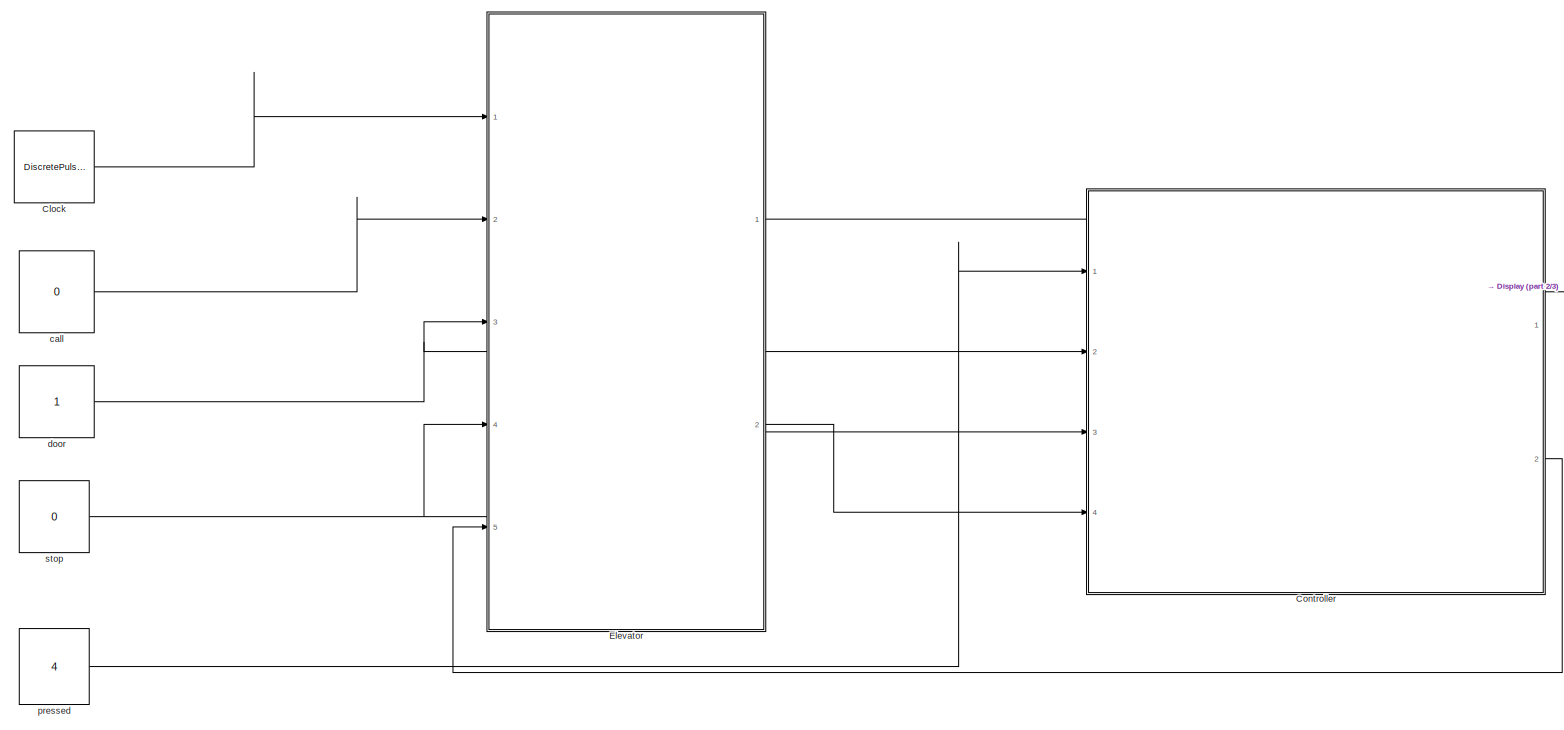
[diagram: root canvas - part 1/3, full width, top band]
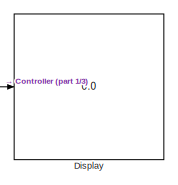
[diagram: root canvas - part 2/3, top right region]
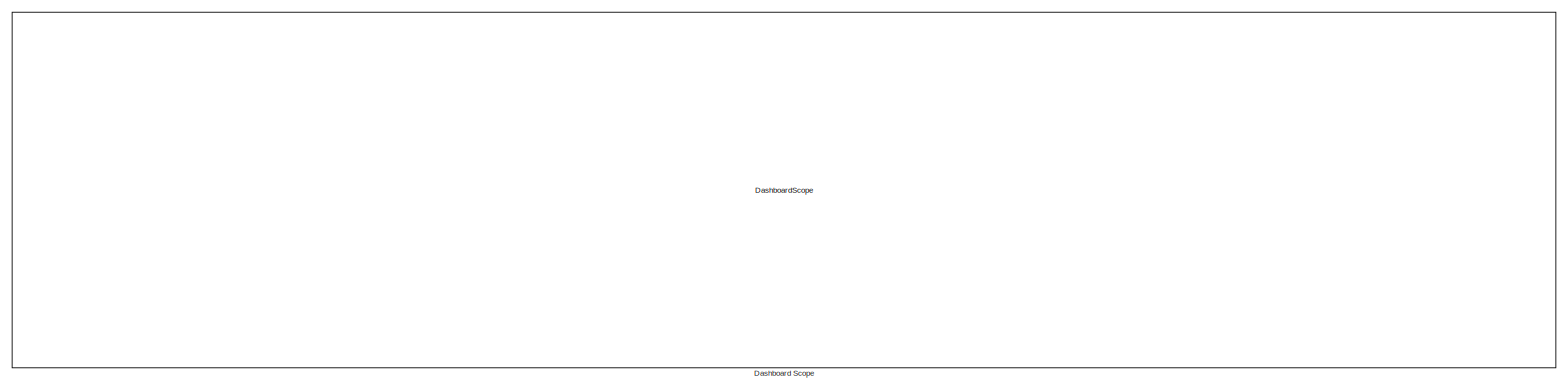
[diagram: root canvas - part 3/3, full width, bottom band]
MODEL slx_94f4ce5ff94b
KIND model
CONFIG AbsTol = auto
CONFIG EnableMultiTasking = on
CONFIG FixedStep = 0.01
CONFIG MaxStep = 0.2
CONFIG MinStep = auto
CONFIG RelTol = 1e-3
CONFIG SampleTimeConstraint = Unconstrained
CONFIG Solver = FixedStepAuto
CONFIG SolverName = FixedStepAuto
CONFIG StartTime = 0.0
CONFIG StopTime = inf
BLOCK [DiscretePulseGenerator] Clock
  Period = 1
  Ports = [0, 1]
  PulseType = Time based
  PulseWidth = 5
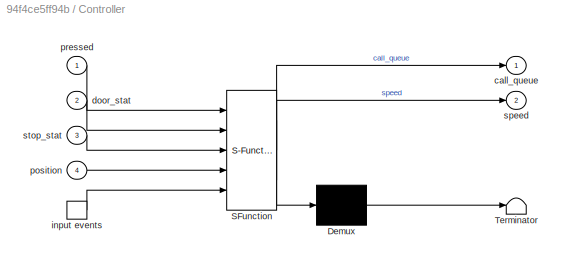
BLOCK [SubSystem] Controller
  BlockKeywords = __PRM__SERIALIZED__DATA__:Stateflow Chart,Stateflow Diagram
  ErrorFcn = Stateflow.Translate.translate
  PermitHierarchicalResolution = ExplicitOnly
  Ports = [4, 2, 0, 1]
  RequestExecContextInheritance = off
  SFBlockType = Chart
  TreatAsAtomicUnit = on
BLOCK [Demux] Controller/ Demux 
  Outputs = 1
  Ports = [1, 1]
BLOCK [S-Function] Controller/ SFunction 
  EnableBusSupport = on
  FunctionName = sf_sfun
  PortCounts = [5 3]
  Ports = [5, 3]
  SFcnIsStateOwnerBlock = off
  SFunctionDeploymentMode = off
  Tag = Stateflow S-Function a2_p3 3
BLOCK [Terminator] Controller/ Terminator 
BLOCK [Outport] Controller/call_queue
  IconDisplay = Port number
BLOCK [Inport] Controller/door_stat
  IconDisplay = Port number
  Port = 2
BLOCK [TriggerPort] Controller/input events
  Ports = [0, 1]
  ShowOutputPort = on
  StatesWhenEnabling = held
  TriggerType = either
  VariantControl = (inherit)
BLOCK [Inport] Controller/position
  IconDisplay = Port number
  Port = 4
BLOCK [Inport] Controller/pressed
  IconDisplay = Port number
BLOCK [Outport] Controller/speed
  IconDisplay = Port number
  Port = 2
BLOCK [Inport] Controller/stop_stat
  IconDisplay = Port number
  Port = 3
BLOCK [DashboardScope] Dashboard Scope
  ScaleAtStop = off
  TimeSpan = 400
  Ymax = 5
  Ymin = 0
BLOCK [Display] Display
  Decimation = 1
  Ports = [1]
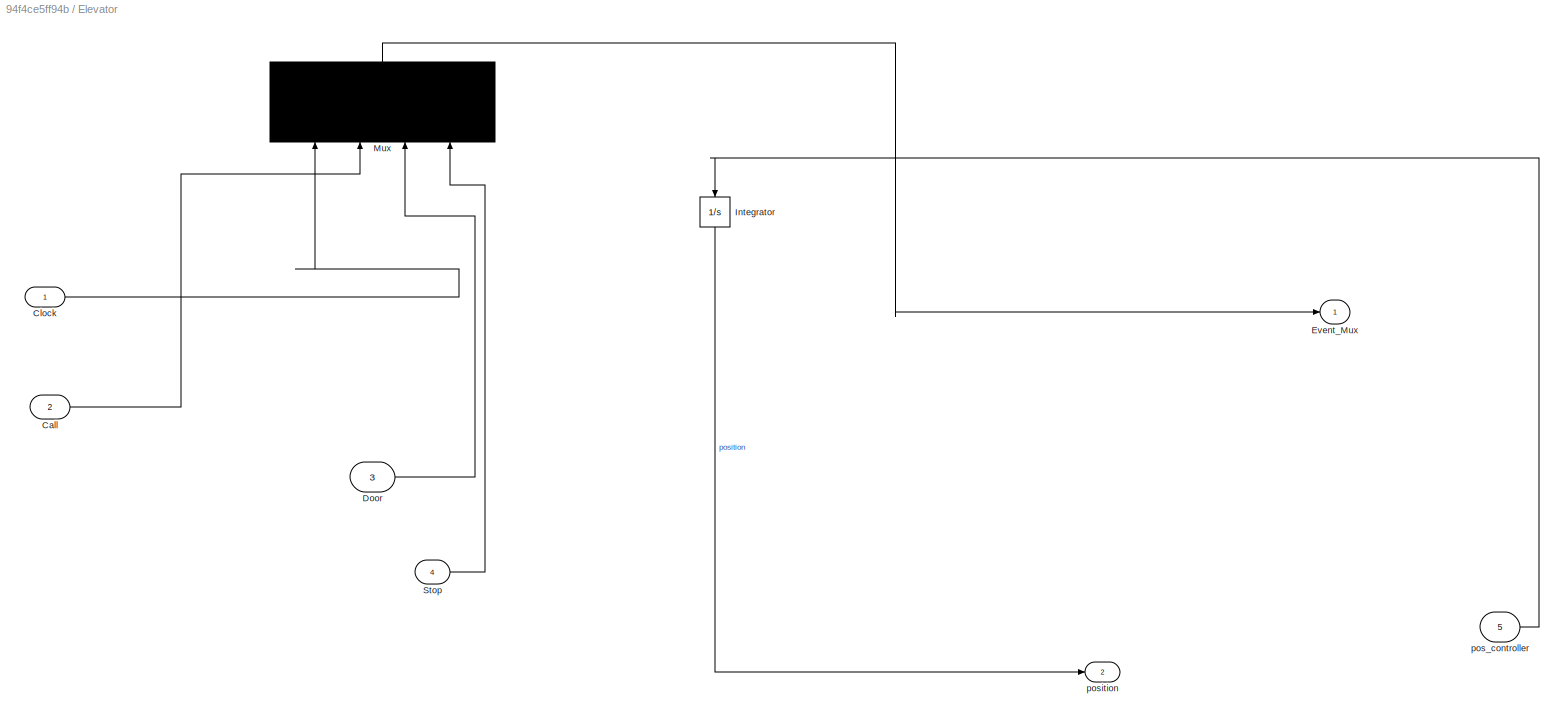
BLOCK [SubSystem] Elevator
  Ports = [5, 2]
  RequestExecContextInheritance = off
BLOCK [Inport] Elevator/Call
  IconDisplay = Port number
  Port = 2
BLOCK [Inport] Elevator/Clock
  IconDisplay = Port number
BLOCK [Inport] Elevator/Door
  IconDisplay = Port number
  Port = 3
BLOCK [Outport] Elevator/Event_Mux
  IconDisplay = Port number
BLOCK [Integrator] Elevator/Integrator
  InitialCondition = 1
  Ports = [1, 1]
BLOCK [Mux] Elevator/Mux
  DisplayOption = signals
  Ports = [4, 1]
BLOCK [Inport] Elevator/Stop
  IconDisplay = Port number
  Port = 4
BLOCK [Inport] Elevator/pos_controller
  IconDisplay = Port number
  Port = 5
BLOCK [Outport] Elevator/position
  IconDisplay = Port number
  Port = 2
BLOCK [Constant] call
  OutDataTypeStr = double
  Value = 0
BLOCK [Constant] door
  OutDataTypeStr = double
BLOCK [Constant] pressed
  OutDataTypeStr = double
  Value = 4
BLOCK [Constant] stop
  OutDataTypeStr = double
  Value = 0
LINE Clock:1 -> Elevator:1
LINE Controller:1 -> Display:1
LINE Controller:2 -> Elevator:5
LINE Elevator/Call:1 -> Elevator/Mux:2
LINE Elevator/Clock:1 -> Elevator/Mux:1
LINE Elevator/Door:1 -> Elevator/Mux:3
LINE Elevator/Integrator:1 -> Elevator/position:1
LINE Elevator/Mux:1 -> Elevator/Event_Mux:1
LINE Elevator/Stop:1 -> Elevator/Mux:4
LINE Elevator/pos_controller:1 -> Elevator/Integrator:1
LINE Elevator:1 -> Controller:trigger
LINE Elevator:2 -> Controller:4
LINE call:1 -> Elevator:2
NET door:1 -> Controller:2, Elevator:3
LINE pressed:1 -> Controller:1
NET stop:1 -> Controller:3, Elevator:4
note: NET lines group one-source signal fan-out (src -> all destinations, sorted); 1:1 wires keep LINE
CHART Controller states=20 transitions=26
  STATE_LABEL 'speed = set_speed(position)'
  STATE_LABEL '% when going down maintain\nfull speed'
  STATE_LABEL '% when going up maintain\nfull speed'
  STATE_LABEL '% when going down  and within \nSLOW_RANGE of goal, slown down\nthe elevator.'
  STATE_LABEL '% when going up and within \nSLOW_RANGE of goal, slown down\nthe elevator.'
  STATE_LABEL '% stop elevator when the position is within the\nMARGIN range of goal'
  STATE_LABEL '{goal = call_queue[0] ;}'
  STATE_LABEL '[position > goal + MARGIN ]\n{speed = -MAX_SPEED;}'
  STATE_LABEL '[position < goal - MARGIN]\n{speed = MAX_SPEED}'
  STATE_LABEL '[position - SLOW_RANGE  < goal]\n{speed = -MAX_SPEED/ 10}'
  STATE_LABEL '{speed = 0; dq = 1;}'
  STATE_LABEL '[position + SLOW_RANGE  > goal]\n{speed = MAX_SPEED/ 10}'
  STATE_LABEL '% when going down maintain\nfull speed'
  STATE_LABEL '% when going up maintain\nfull speed'
  STATE_LABEL '% when going down  and within \nSLOW_RANGE of goal, slown down\nthe elevator.'
  STATE_LABEL '% when going up and within \nSLOW_RANGE of goal, slown down\nthe elevator.'
  STATE_LABEL '% stop elevator when the position is within the\nMARGIN range of goal'
  STATE_LABEL 'ButtonControl'
  STATE_LABEL 'QUEUING\n\n\ndu:\n\non call : nq_floor(pressed); \n'
  STATE_LABEL "\n{ml.try_p3('init');}"
  STATE_LABEL 'QUEUING\n\n\ndu:\n\non call : nq_floor(pressed); \n'
  STATE_LABEL 'MovementControl\n\n% input all the button events\n% output speed\n\n'
  STATE_LABEL 'DEFAULT'
  STATE_LABEL 'IDLE\n\ndq = 0;\n\n'
  STATE_LABEL "MOVING\nen : ml.try_p3('close');\ndu : speed = set_speed(position);\n\n"
  STATE_LABEL 'DOORS\n\n%Doors are opened and after \n%5seconds, they are closed.\n\n'
  STATE_LABEL '[(call_queue[0] != 0)]'
  STATE_LABEL 'call'
  STATE_LABEL "after(5,sec){ml.try_p3('close')}"
  STATE_LABEL "[dq]\n{dq_floor();\n  ml.try_p3('open');}"
  STATE_LABEL "EMERGENCY\n\nspeed = 0;\n%open doors\nml.try_p3('open');\n%close doors\nex: ml.try_p3('close');"
  STATE_LABEL "stop[!stop_stat]{ml.try_p3('off', 'stop');}"
  STATE_LABEL "stop{ml.try_p3('on', 'stop');}"
  STATE_LABEL 'DEFAULT'
  STATE_LABEL 'IDLE\n\ndq = 0;\n\n'
  STATE_LABEL "MOVING\nen : ml.try_p3('close');\ndu : speed = set_speed(position);\n\n"
  STATE_LABEL 'DOORS\n\n%Doors are opened and after \n%5seconds, they are closed.\n\n'
  STATE_LABEL '[(call_queue[0] != 0)]'
  STATE_LABEL 'call'
  STATE_LABEL "after(5,sec){ml.try_p3('close')}"
